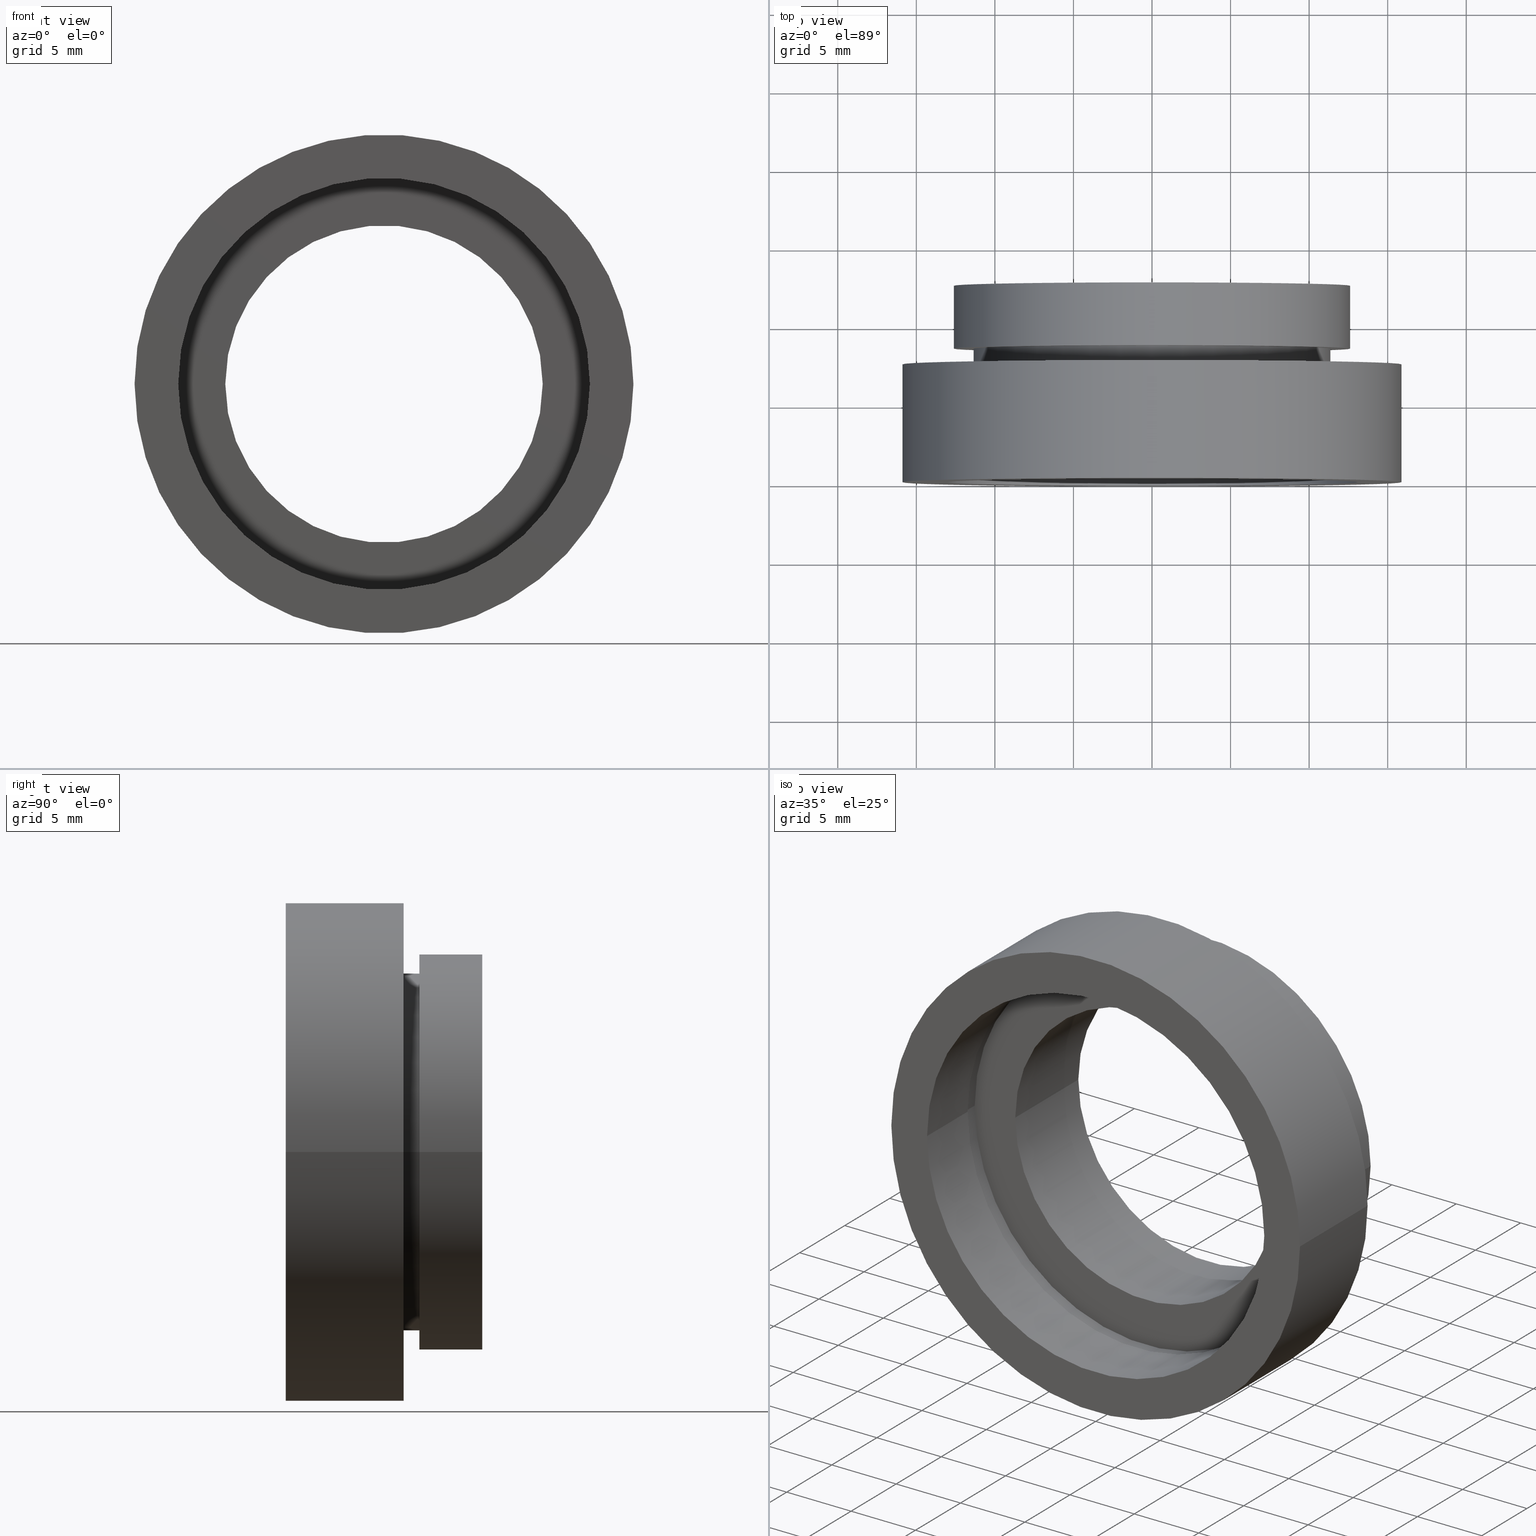
[diagram: canonical four-view strip — front | top / right | iso, engineering-drawing reading convention]
A machine part, canonical four-view strip (front | top / right | iso — engineering-drawing reading convention). The complete STEP part file that produces these views, byte-faithful:
ISO-10303-21;
HEADER;
FILE_DESCRIPTION (( 'STEP AP214' ),
    '1' );
FILE_NAME ('504124.STEP',
    '2019-10-09T01:24:42',
    ( '' ),
    ( '' ),
    'SwSTEP 2.0',
    'SolidWorks 2016',
    '' );
FILE_SCHEMA (( 'AUTOMOTIVE_DESIGN' ));
ENDSEC;

DATA;
#1 = PRODUCT_RELATED_PRODUCT_CATEGORY ( 'part', '', ( #517 ) ) ;
#2 = EDGE_LOOP ( 'NONE', ( #236, #10 ) ) ;
#3 = AXIS2_PLACEMENT_3D ( 'NONE', #292, #338, #446 ) ;
#4 = ORIENTED_EDGE ( 'NONE', *, *, #331, .T. ) ;
#5 = CARTESIAN_POINT ( 'NONE',  ( 0.0000000000000000000, 16.88601823708207700, 0.0000000000000000000 ) ) ;
#6 = DIRECTION ( 'NONE',  ( -1.000000000000000000, -8.587739980083203700E-017, 0.0000000000000000000 ) ) ;
#7 = CARTESIAN_POINT ( 'NONE',  ( 1.149455719078122700E-015, 7.499999999999998200, 0.0000000000000000000 ) ) ;
#8 = CARTESIAN_POINT ( 'NONE',  ( 5.371323195044474300E-016, 12.49999999999999600, 0.0000000000000000000 ) ) ;
#9 = FACE_OUTER_BOUND ( 'NONE', #221, .T. ) ;
#10 = ORIENTED_EDGE ( 'NONE', *, *, #563, .F. ) ;
#11 = DIRECTION ( 'NONE',  ( -1.224646799147351000E-016, 1.000000000000000000, -0.0000000000000000000 ) ) ;
#12 = AXIS2_PLACEMENT_3D ( 'NONE', #5, #199, #487 ) ;
#13 =( NAMED_UNIT ( * ) SI_UNIT ( $, .STERADIAN. ) SOLID_ANGLE_UNIT ( ) );
#14 = SURFACE_STYLE_FILL_AREA ( #486 ) ;
#15 = VERTEX_POINT ( 'NONE', #282 ) ;
#16 = ORIENTED_EDGE ( 'NONE', *, *, #317, .F. ) ;
#17 =( NAMED_UNIT ( * ) SI_UNIT ( $, .STERADIAN. ) SOLID_ANGLE_UNIT ( ) );
#18 =( GEOMETRIC_REPRESENTATION_CONTEXT ( 3 ) GLOBAL_UNCERTAINTY_ASSIGNED_CONTEXT ( ( #178 ) ) GLOBAL_UNIT_ASSIGNED_CONTEXT ( ( #140, #190, #193 ) ) REPRESENTATION_CONTEXT ( 'NONE', 'WORKASPACE' ) );
#19 = VERTEX_POINT ( 'NONE', #332 ) ;
#20 = AXIS2_PLACEMENT_3D ( 'NONE', #168, #223, #171 ) ;
#21 = FILL_AREA_STYLE_COLOUR ( '', #422 ) ;
#22 = EDGE_CURVE ( 'NONE', #174, #325, #309, .T. ) ;
#23 = DIRECTION ( 'NONE',  ( -1.224646799147351000E-016, 1.000000000000000000, -0.0000000000000000000 ) ) ;
#24 = DIRECTION ( 'NONE',  ( -1.000000000000000000, -1.528390727732869900E-016, 0.0000000000000000000 ) ) ;
#25 = FACE_BOUND ( 'NONE', #47, .T. ) ;
#26 =( GEOMETRIC_REPRESENTATION_CONTEXT ( 3 ) GLOBAL_UNCERTAINTY_ASSIGNED_CONTEXT ( ( #139 ) ) GLOBAL_UNIT_ASSIGNED_CONTEXT ( ( #582, #252, #399 ) ) REPRESENTATION_CONTEXT ( 'NONE', 'WORKASPACE' ) );
#27 = ORIENTED_EDGE ( 'NONE', *, *, #51, .F. ) ;
#28 = ORIENTED_EDGE ( 'NONE', *, *, #22, .T. ) ;
#29 = PRODUCT_CONTEXT ( 'NONE', #281, 'mechanical' ) ;
#30 = AXIS2_PLACEMENT_3D ( 'NONE', #132, #477, #35 ) ;
#31 = FACE_OUTER_BOUND ( 'NONE', #70, .T. ) ;
#32 = EDGE_CURVE ( 'NONE', #418, #567, #33, .T. ) ;
#33 = CIRCLE ( 'NONE', #30, 12.60999999999999800 ) ;
#34 = ORIENTED_EDGE ( 'NONE', *, *, #87, .F. ) ;
#35 = DIRECTION ( 'NONE',  ( -1.000000000000000000, -1.375672859616818000E-016, 0.0000000000000000000 ) ) ;
#36 = CARTESIAN_POINT ( 'NONE',  ( 1.394385078907593200E-015, 5.499999999999996400, 0.0000000000000000000 ) ) ;
#37 = EDGE_CURVE ( 'NONE', #567, #418, #78, .T. ) ;
#38 = EDGE_CURVE ( 'NONE', #392, #189, #133, .T. ) ;
#39 = ORIENTED_EDGE ( 'NONE', *, *, #483, .F. ) ;
#40 = EDGE_LOOP ( 'NONE', ( #475, #265 ) ) ;
#41 = DIRECTION ( 'NONE',  ( -1.000000000000000000, -1.375672859616817700E-016, 0.0000000000000000000 ) ) ;
#42 = FILL_AREA_STYLE ('',( #397 ) ) ;
#43 = FILL_AREA_STYLE_COLOUR ( '', #423 ) ;
#44 = CARTESIAN_POINT ( 'NONE',  ( 11.35000000000000100, 8.500000000000000000, 1.389974117032245900E-015 ) ) ;
#45 = AXIS2_PLACEMENT_3D ( 'NONE', #420, #513, #165 ) ;
#46 = AXIS2_PLACEMENT_3D ( 'NONE', #501, #106, #545 ) ;
#47 = EDGE_LOOP ( 'NONE', ( #539, #504 ) ) ;
#48 = DIRECTION ( 'NONE',  ( -1.224646799147351000E-016, 1.000000000000000000, -0.0000000000000000000 ) ) ;
#49 = SURFACE_STYLE_USAGE ( .BOTH. , #348 ) ;
#50 = AXIS2_PLACEMENT_3D ( 'NONE', #550, #264, #406 ) ;
#51 = EDGE_CURVE ( 'NONE', #460, #482, #592, .T. ) ;
#52 = DIRECTION ( 'NONE',  ( -1.000000000000000000, -1.717547996016640700E-016, 0.0000000000000000000 ) ) ;
#53 = CIRCLE ( 'NONE', #71, 15.87499999999999600 ) ;
#54 = LINE ( 'NONE', #261, #172 ) ;
#55 = DIRECTION ( 'NONE',  ( -1.224646799147351000E-016, 1.000000000000000000, -0.0000000000000000000 ) ) ;
#56 = ORIENTED_EDGE ( 'NONE', *, *, #38, .T. ) ;
#57 = AXIS2_PLACEMENT_3D ( 'NONE', #201, #495, #390 ) ;
#58 = CARTESIAN_POINT ( 'NONE',  ( 5.371323195044473300E-016, 12.49999999999999600, 0.0000000000000000000 ) ) ;
#59 = MECHANICAL_DESIGN_GEOMETRIC_PRESENTATION_REPRESENTATION (  '', ( #84 ), #518 ) ;
#60 =( NAMED_UNIT ( * ) PLANE_ANGLE_UNIT ( ) SI_UNIT ( $, .RADIAN. ) );
#61 = COLOUR_RGB ( '',1.000000000000000000, 1.000000000000000000, 1.000000000000000000 ) ;
#62 = PRESENTATION_STYLE_ASSIGNMENT (( #393 ) ) ;
#63 = CARTESIAN_POINT ( 'NONE',  ( 11.35000000000000100, 7.500000000000000000, 1.389974117032245900E-015 ) ) ;
#64 = EDGE_CURVE ( 'NONE', #512, #19, #69, .T. ) ;
#65 =( NAMED_UNIT ( * ) PLANE_ANGLE_UNIT ( ) SI_UNIT ( $, .RADIAN. ) );
#66 = DIRECTION ( 'NONE',  ( -1.224646799147351000E-016, 1.000000000000000000, -0.0000000000000000000 ) ) ;
#67 = STYLED_ITEM ( 'NONE', ( #415 ), #339 ) ;
#68 = VECTOR ( 'NONE', #530, 1000.000000000000000 ) ;
#69 = CIRCLE ( 'NONE', #82, 10.10000000000000000 ) ;
#70 = EDGE_LOOP ( 'NONE', ( #361, #297, #316, #103 ) ) ;
#71 = AXIS2_PLACEMENT_3D ( 'NONE', #413, #169, #417 ) ;
#72 = PLANE ( 'NONE',  #408 ) ;
#73 = ORIENTED_EDGE ( 'NONE', *, *, #618, .T. ) ;
#74 = FILL_AREA_STYLE ('',( #21 ) ) ;
#75 = SURFACE_STYLE_USAGE ( .BOTH. , #565 ) ;
#76 = PRESENTATION_STYLE_ASSIGNMENT (( #212 ) ) ;
#77 = APPLICATION_PROTOCOL_DEFINITION ( 'draft international standard', 'automotive_design', 1998, #281 ) ;
#78 = CIRCLE ( 'NONE', #429, 12.60999999999999800 ) ;
#79 = CARTESIAN_POINT ( 'NONE',  ( 1.394385078907593200E-015, 5.499999999999996400, 0.0000000000000000000 ) ) ;
#80 = ORIENTED_EDGE ( 'NONE', *, *, #137, .T. ) ;
#81 = CARTESIAN_POINT ( 'NONE',  ( -13.10000000000000000, 16.88601823708207700, 0.0000000000000000000 ) ) ;
#82 = AXIS2_PLACEMENT_3D ( 'NONE', #36, #288, #384 ) ;
#83 = ADVANCED_FACE ( 'NONE', ( #571, #474 ), #85, .F. ) ;
#84 = STYLED_ITEM ( 'NONE', ( #76 ), #442 ) ;
#85 = PLANE ( 'NONE',  #206 ) ;
#86 = PRESENTATION_STYLE_ASSIGNMENT (( #557 ) ) ;
#87 = EDGE_CURVE ( 'NONE', #228, #431, #600, .T. ) ;
#88 = EDGE_LOOP ( 'NONE', ( #620, #280 ) ) ;
#89 = ORIENTED_EDGE ( 'NONE', *, *, #32, .T. ) ;
#90 = CARTESIAN_POINT ( 'NONE',  ( -10.10000000000000000, 16.88601823708207700, 0.0000000000000000000 ) ) ;
#91 = FACE_OUTER_BOUND ( 'NONE', #144, .T. ) ;
#92 = SURFACE_STYLE_FILL_AREA ( #497 ) ;
#93 = STYLED_ITEM ( 'NONE', ( #123 ), #401 ) ;
#94 = DIRECTION ( 'NONE',  ( -1.224646799147351000E-016, 1.000000000000000000, -0.0000000000000000000 ) ) ;
#95 = LINE ( 'NONE', #90, #101 ) ;
#96 = CARTESIAN_POINT ( 'NONE',  ( -10.10000000000000000, 12.49999999999999500, 0.0000000000000000000 ) ) ;
#97 = EDGE_CURVE ( 'NONE', #189, #124, #233, .T. ) ;
#98 = DIRECTION ( 'NONE',  ( -1.000000000000000000, -1.224646799147351000E-016, 0.0000000000000000000 ) ) ;
#99 = DIRECTION ( 'NONE',  ( 1.000000000000000000, 1.224646799147351000E-016, 0.0000000000000000000 ) ) ;
#100 = PLANE ( 'NONE',  #267 ) ;
#101 = VECTOR ( 'NONE', #250, 1000.000000000000000 ) ;
#102 = PRESENTATION_LAYER_ASSIGNMENT (  '', '', ( #67 ) ) ;
#103 = ORIENTED_EDGE ( 'NONE', *, *, #152, .F. ) ;
#104 = CARTESIAN_POINT ( 'NONE',  ( 12.60999999999999900, 16.88601823708207700, 1.544279613724812300E-015 ) ) ;
#105 = EDGE_LOOP ( 'NONE', ( #215, #323, #381, #355 ) ) ;
#106 = DIRECTION ( 'NONE',  ( -1.224646799147351000E-016, 1.000000000000000000, -0.0000000000000000000 ) ) ;
#107 = AXIS2_PLACEMENT_3D ( 'NONE', #365, #466, #375 ) ;
#108 = CARTESIAN_POINT ( 'NONE',  ( 15.87500000000000000, -1.525320158307194900E-015, 1.944126793646423200E-015 ) ) ;
#109 = FACE_OUTER_BOUND ( 'NONE', #498, .T. ) ;
#110 =( LENGTH_UNIT ( ) NAMED_UNIT ( * ) SI_UNIT ( .MILLI., .METRE. ) );
#111 = EDGE_LOOP ( 'NONE', ( #549, #574 ) ) ;
#112 = VERTEX_POINT ( 'NONE', #343 ) ;
#113 = DIRECTION ( 'NONE',  ( -1.000000000000000000, -2.185478394931410600E-016, 0.0000000000000000000 ) ) ;
#114 = DIRECTION ( 'NONE',  ( -1.224646799147351000E-016, 1.000000000000000000, -0.0000000000000000000 ) ) ;
#115 = PRESENTATION_LAYER_ASSIGNMENT (  '', '', ( #481 ) ) ;
#116 = CARTESIAN_POINT ( 'NONE',  ( 15.87500000000000000, -1.944126793646428200E-016, 0.0000000000000000000 ) ) ;
#117 = SURFACE_STYLE_FILL_AREA ( #74 ) ;
#118 = FACE_OUTER_BOUND ( 'NONE', #593, .T. ) ;
#119 = PRESENTATION_LAYER_ASSIGNMENT (  '', '', ( #372 ) ) ;
#120 = CARTESIAN_POINT ( 'NONE',  ( -12.60999999999999600, 8.499999999999996400, 0.0000000000000000000 ) ) ;
#121 = ORIENTED_EDGE ( 'NONE', *, *, #175, .T. ) ;
#122 = CLOSED_SHELL ( 'NONE', ( #617, #187, #484, #577, #184, #333, #573, #247, #135, #386, #521, #442, #83, #339, #191, #523, #388, #238 ) ) ;
#123 = PRESENTATION_STYLE_ASSIGNMENT (( #49 ) ) ;
#124 = VERTEX_POINT ( 'NONE', #44 ) ;
#125 = ORIENTED_EDGE ( 'NONE', *, *, #37, .T. ) ;
#126 = AXIS2_PLACEMENT_3D ( 'NONE', #345, #538, #541 ) ;
#127 = UNCERTAINTY_MEASURE_WITH_UNIT (LENGTH_MEASURE( 1.000000000000000100E-005 ), #269, 'distance_accuracy_value', 'NONE');
#128 = DIRECTION ( 'NONE',  ( -1.000000000000000000, -1.309225264888156400E-016, 0.0000000000000000000 ) ) ;
#129 = CARTESIAN_POINT ( 'NONE',  ( 1.026991039163387700E-015, 8.499999999999998200, 0.0000000000000000000 ) ) ;
#130 = CYLINDRICAL_SURFACE ( 'NONE', #173, 11.35000000000000000 ) ;
#131 = VECTOR ( 'NONE', #259, 1000.000000000000000 ) ;
#132 = CARTESIAN_POINT ( 'NONE',  ( 1.026991039163387700E-015, 8.499999999999998200, 0.0000000000000000000 ) ) ;
#133 = LINE ( 'NONE', #185, #352 ) ;
#134 = EDGE_LOOP ( 'NONE', ( #307, #548 ) ) ;
#135 = ADVANCED_FACE ( 'NONE', ( #342, #489 ), #588, .F. ) ;
#136 = CARTESIAN_POINT ( 'NONE',  ( 10.10000000000000000, 12.49999999999999800, 0.0000000000000000000 ) ) ;
#137 = EDGE_CURVE ( 'NONE', #156, #15, #619, .T. ) ;
#138 = DIRECTION ( 'NONE',  ( 1.000000000000000000, 1.224646799147351000E-016, 0.0000000000000000000 ) ) ;
#139 = UNCERTAINTY_MEASURE_WITH_UNIT (LENGTH_MEASURE( 1.000000000000000100E-005 ), #582, 'distance_accuracy_value', 'NONE');
#140 =( LENGTH_UNIT ( ) NAMED_UNIT ( * ) SI_UNIT ( .MILLI., .METRE. ) );
#141 = SURFACE_STYLE_FILL_AREA ( #207 ) ;
#142 = ORIENTED_EDGE ( 'NONE', *, *, #317, .T. ) ;
#143 = CARTESIAN_POINT ( 'NONE',  ( -13.24999999999999800, 16.88601823708207700, 0.0000000000000000000 ) ) ;
#144 = EDGE_LOOP ( 'NONE', ( #213, #344, #56, #400 ) ) ;
#145 = DIRECTION ( 'NONE',  ( -1.000000000000000000, 0.0000000000000000000, 0.0000000000000000000 ) ) ;
#146 = PRODUCT_DEFINITION_SHAPE ( 'NONE', 'NONE',  #277 ) ;
#147 = DIRECTION ( 'NONE',  ( -1.224646799147351000E-016, 1.000000000000000000, -0.0000000000000000000 ) ) ;
#148 =( LENGTH_UNIT ( ) NAMED_UNIT ( * ) SI_UNIT ( .MILLI., .METRE. ) );
#149 = DIRECTION ( 'NONE',  ( -1.224646799147351000E-016, 1.000000000000000000, -0.0000000000000000000 ) ) ;
#150 = DIRECTION ( 'NONE',  ( -1.000000000000000000, -1.092739197465705300E-016, 0.0000000000000000000 ) ) ;
#151 = CARTESIAN_POINT ( 'NONE',  ( 13.10000000000000000, 16.88601823708207700, 1.604287306883032600E-015 ) ) ;
#152 = EDGE_CURVE ( 'NONE', #512, #183, #95, .T. ) ;
#153 = COLOUR_RGB ( '',1.000000000000000000, 1.000000000000000000, 1.000000000000000000 ) ;
#154 =( NAMED_UNIT ( * ) SI_UNIT ( $, .STERADIAN. ) SOLID_ANGLE_UNIT ( ) );
#155 = FACE_OUTER_BOUND ( 'NONE', #105, .T. ) ;
#156 = VERTEX_POINT ( 'NONE', #291 ) ;
#157 = DIRECTION ( 'NONE',  ( -1.000000000000000000, -1.092739197465705300E-016, 0.0000000000000000000 ) ) ;
#158 =( NAMED_UNIT ( * ) PLANE_ANGLE_UNIT ( ) SI_UNIT ( $, .RADIAN. ) );
#159 = ADVANCED_BREP_SHAPE_REPRESENTATION ( '504124', ( #401, #107 ), #287 ) ;
#160 = CIRCLE ( 'NONE', #546, 12.60999999999999900 ) ;
#161 = VERTEX_POINT ( 'NONE', #578 ) ;
#162 =( NAMED_UNIT ( * ) SI_UNIT ( $, .STERADIAN. ) SOLID_ANGLE_UNIT ( ) );
#163 = AXIS2_PLACEMENT_3D ( 'NONE', #508, #507, #113 ) ;
#164 = PRESENTATION_LAYER_ASSIGNMENT (  '', '', ( #435 ) ) ;
#165 = DIRECTION ( 'NONE',  ( -1.000000000000000000, -1.224646799147351000E-016, 0.0000000000000000000 ) ) ;
#166 = ORIENTED_EDGE ( 'NONE', *, *, #511, .T. ) ;
#167 = ORIENTED_EDGE ( 'NONE', *, *, #502, .F. ) ;
#168 = CARTESIAN_POINT ( 'NONE',  ( 0.0000000000000000000, 16.88601823708207700, 0.0000000000000000000 ) ) ;
#169 = DIRECTION ( 'NONE',  ( -1.224646799147351000E-016, 1.000000000000000000, -0.0000000000000000000 ) ) ;
#170 =( GEOMETRIC_REPRESENTATION_CONTEXT ( 3 ) GLOBAL_UNCERTAINTY_ASSIGNED_CONTEXT ( ( #371 ) ) GLOBAL_UNIT_ASSIGNED_CONTEXT ( ( #587, #535, #491 ) ) REPRESENTATION_CONTEXT ( 'NONE', 'WORKASPACE' ) );
#171 = DIRECTION ( 'NONE',  ( -1.000000000000000000, 0.0000000000000000000, 0.0000000000000000000 ) ) ;
#172 = VECTOR ( 'NONE', #404, 1000.000000000000000 ) ;
#173 = AXIS2_PLACEMENT_3D ( 'NONE', #272, #509, #610 ) ;
#174 = VERTEX_POINT ( 'NONE', #531 ) ;
#175 = EDGE_CURVE ( 'NONE', #499, #209, #306, .T. ) ;
#176 = ORIENTED_EDGE ( 'NONE', *, *, #596, .T. ) ;
#177 = APPLICATION_PROTOCOL_DEFINITION ( 'draft international standard', 'automotive_design', 1998, #179 ) ;
#178 = UNCERTAINTY_MEASURE_WITH_UNIT (LENGTH_MEASURE( 1.000000000000000100E-005 ), #140, 'distance_accuracy_value', 'NONE');
#179 = APPLICATION_CONTEXT ( 'automotive_design' ) ;
#180 = DIRECTION ( 'NONE',  ( -1.224646799147351000E-016, 1.000000000000000000, -0.0000000000000000000 ) ) ;
#181 = LINE ( 'NONE', #266, #359 ) ;
#182 = SURFACE_STYLE_FILL_AREA ( #42 ) ;
#183 = VERTEX_POINT ( 'NONE', #96 ) ;
#184 = ADVANCED_FACE ( 'NONE', ( #208 ), #447, .F. ) ;
#185 = CARTESIAN_POINT ( 'NONE',  ( -11.35000000000000000, 16.88601823708207700, 0.0000000000000000000 ) ) ;
#186 = VECTOR ( 'NONE', #55, 1000.000000000000000 ) ;
#187 = ADVANCED_FACE ( 'NONE', ( #155 ), #416, .T. ) ;
#188 = EDGE_LOOP ( 'NONE', ( #601, #224, #28, #73 ) ) ;
#189 = VERTEX_POINT ( 'NONE', #496 ) ;
#190 =( NAMED_UNIT ( * ) PLANE_ANGLE_UNIT ( ) SI_UNIT ( $, .RADIAN. ) );
#191 = ADVANCED_FACE ( 'NONE', ( #366, #321 ), #195, .F. ) ;
#192 = DIRECTION ( 'NONE',  ( -1.224646799147351000E-016, 1.000000000000000000, -0.0000000000000000000 ) ) ;
#193 =( NAMED_UNIT ( * ) SI_UNIT ( $, .STERADIAN. ) SOLID_ANGLE_UNIT ( ) );
#194 =( GEOMETRIC_REPRESENTATION_CONTEXT ( 3 ) GLOBAL_UNCERTAINTY_ASSIGNED_CONTEXT ( ( #127 ) ) GLOBAL_UNIT_ASSIGNED_CONTEXT ( ( #269, #603, #17 ) ) REPRESENTATION_CONTEXT ( 'NONE', 'WORKASPACE' ) );
#195 = PLANE ( 'NONE',  #217 ) ;
#196 = AXIS2_PLACEMENT_3D ( 'NONE', #324, #469, #378 ) ;
#197 = FACE_OUTER_BOUND ( 'NONE', #234, .T. ) ;
#198 = VECTOR ( 'NONE', #337, 1000.000000000000000 ) ;
#199 = DIRECTION ( 'NONE',  ( -1.224646799147351000E-016, 1.000000000000000000, -0.0000000000000000000 ) ) ;
#200 = EDGE_LOOP ( 'NONE', ( #464, #516 ) ) ;
#201 = CARTESIAN_POINT ( 'NONE',  ( 2.067940818438636500E-015, -3.469446951953614200E-015, 0.0000000000000000000 ) ) ;
#202 = DIRECTION ( 'NONE',  ( 1.224646799147351000E-016, -1.000000000000000000, 0.0000000000000000000 ) ) ;
#203 = DIRECTION ( 'NONE',  ( -1.000000000000000000, 0.0000000000000000000, 0.0000000000000000000 ) ) ;
#204 = CARTESIAN_POINT ( 'NONE',  ( 13.25000000000000000, 4.499999999999997300, 1.622657008870242700E-015 ) ) ;
#205 = CARTESIAN_POINT ( 'NONE',  ( 2.067940818438636100E-015, 0.0000000000000000000, 0.0000000000000000000 ) ) ;
#206 = AXIS2_PLACEMENT_3D ( 'NONE', #136, #235, #138 ) ;
#207 = FILL_AREA_STYLE ('',( #43 ) ) ;
#208 = FACE_OUTER_BOUND ( 'NONE', #621, .T. ) ;
#209 = VERTEX_POINT ( 'NONE', #529 ) ;
#210 = EDGE_LOOP ( 'NONE', ( #80, #608 ) ) ;
#211 = DIRECTION ( 'NONE',  ( -1.000000000000000000, -1.375672859616817700E-016, 0.0000000000000000000 ) ) ;
#212 = SURFACE_STYLE_USAGE ( .BOTH. , #597 ) ;
#213 = ORIENTED_EDGE ( 'NONE', *, *, #379, .F. ) ;
#214 = DIRECTION ( 'NONE',  ( -1.000000000000000000, -1.324216393875425300E-016, 0.0000000000000000000 ) ) ;
#215 = ORIENTED_EDGE ( 'NONE', *, *, #599, .T. ) ;
#216 = CARTESIAN_POINT ( 'NONE',  ( 5.371323195044473300E-016, 12.49999999999999600, 0.0000000000000000000 ) ) ;
#217 = AXIS2_PLACEMENT_3D ( 'NONE', #443, #534, #293 ) ;
#218 = CARTESIAN_POINT ( 'NONE',  ( 1.394385078907593200E-015, 5.499999999999996400, 0.0000000000000000000 ) ) ;
#219 = PRESENTATION_LAYER_ASSIGNMENT (  '', '', ( #84 ) ) ;
#220 = DIRECTION ( 'NONE',  ( -1.000000000000000000, -1.717547996016640700E-016, 0.0000000000000000000 ) ) ;
#221 = EDGE_LOOP ( 'NONE', ( #231, #121, #458, #526 ) ) ;
#222 = ORIENTED_EDGE ( 'NONE', *, *, #87, .T. ) ;
#223 = DIRECTION ( 'NONE',  ( -1.224646799147351000E-016, 1.000000000000000000, -0.0000000000000000000 ) ) ;
#224 = ORIENTED_EDGE ( 'NONE', *, *, #285, .F. ) ;
#225 =( NAMED_UNIT ( * ) PLANE_ANGLE_UNIT ( ) SI_UNIT ( $, .RADIAN. ) );
#226 = CIRCLE ( 'NONE', #395, 13.24999999999999800 ) ;
#227 = AXIS2_PLACEMENT_3D ( 'NONE', #364, #319, #24 ) ;
#228 = VERTEX_POINT ( 'NONE', #244 ) ;
#229 = DIRECTION ( 'NONE',  ( -1.224646799147351000E-016, 1.000000000000000000, -0.0000000000000000000 ) ) ;
#230 = AXIS2_PLACEMENT_3D ( 'NONE', #241, #94, #203 ) ;
#231 = ORIENTED_EDGE ( 'NONE', *, *, #320, .F. ) ;
#232 = DIRECTION ( 'NONE',  ( -1.224646799147351000E-016, 1.000000000000000000, -0.0000000000000000000 ) ) ;
#233 = CIRCLE ( 'NONE', #459, 11.35000000000000000 ) ;
#234 = EDGE_LOOP ( 'NONE', ( #125, #166, #410, #520 ) ) ;
#235 = DIRECTION ( 'NONE',  ( 1.224646799147351000E-016, -1.000000000000000000, 0.0000000000000000000 ) ) ;
#236 = ORIENTED_EDGE ( 'NONE', *, *, #377, .F. ) ;
#237 = MECHANICAL_DESIGN_GEOMETRIC_PRESENTATION_REPRESENTATION (  '', ( #566 ), #26 ) ;
#238 = ADVANCED_FACE ( 'NONE', ( #436 ), #315, .T. ) ;
#239 = MECHANICAL_DESIGN_GEOMETRIC_PRESENTATION_REPRESENTATION (  '', ( #572 ), #527 ) ;
#240 = EDGE_CURVE ( 'NONE', #19, #512, #330, .T. ) ;
#241 = CARTESIAN_POINT ( 'NONE',  ( 0.0000000000000000000, 16.88601823708207700, 0.0000000000000000000 ) ) ;
#242 = CYLINDRICAL_SURFACE ( 'NONE', #585, 12.60999999999999900 ) ;
#243 = CIRCLE ( 'NONE', #362, 10.10000000000000000 ) ;
#244 = CARTESIAN_POINT ( 'NONE',  ( -13.24999999999999600, 4.499999999999993800, 0.0000000000000000000 ) ) ;
#245 = CIRCLE ( 'NONE', #570, 13.10000000000000000 ) ;
#246 = CARTESIAN_POINT ( 'NONE',  ( 12.60999999999999900, 8.500000000000000000, 1.544279613724812300E-015 ) ) ;
#247 = ADVANCED_FACE ( 'NONE', ( #248 ), #457, .F. ) ;
#248 = FACE_OUTER_BOUND ( 'NONE', #188, .T. ) ;
#249 = SURFACE_SIDE_STYLE ('',( #430 ) ) ;
#250 = DIRECTION ( 'NONE',  ( -1.224646799147351000E-016, 1.000000000000000000, -0.0000000000000000000 ) ) ;
#251 = FILL_AREA_STYLE_COLOUR ( '', #581 ) ;
#252 =( NAMED_UNIT ( * ) PLANE_ANGLE_UNIT ( ) SI_UNIT ( $, .RADIAN. ) );
#253 = AXIS2_PLACEMENT_3D ( 'NONE', #623, #149, #299 ) ;
#254 = CARTESIAN_POINT ( 'NONE',  ( 11.35000000000000100, 7.500000000000000000, 0.0000000000000000000 ) ) ;
#255 = FACE_OUTER_BOUND ( 'NONE', #2, .T. ) ;
#256 = PRESENTATION_STYLE_ASSIGNMENT (( #624 ) ) ;
#257 = VERTEX_POINT ( 'NONE', #349 ) ;
#258 = AXIS2_PLACEMENT_3D ( 'NONE', #370, #66, #214 ) ;
#259 = DIRECTION ( 'NONE',  ( -1.224646799147351000E-016, 1.000000000000000000, -0.0000000000000000000 ) ) ;
#260 = DIRECTION ( 'NONE',  ( -1.224646799147351000E-016, 1.000000000000000000, -0.0000000000000000000 ) ) ;
#261 = CARTESIAN_POINT ( 'NONE',  ( 13.24999999999999800, 16.88601823708207700, 1.622657008870242700E-015 ) ) ;
#262 = SHAPE_DEFINITION_REPRESENTATION ( #146, #159 ) ;
#263 = CYLINDRICAL_SURFACE ( 'NONE', #230, 13.24999999999999800 ) ;
#264 = DIRECTION ( 'NONE',  ( -1.224646799147351000E-016, 1.000000000000000000, -0.0000000000000000000 ) ) ;
#265 = ORIENTED_EDGE ( 'NONE', *, *, #403, .T. ) ;
#266 = CARTESIAN_POINT ( 'NONE',  ( -15.87500000000000000, 16.88601823708207300, 0.0000000000000000000 ) ) ;
#267 = AXIS2_PLACEMENT_3D ( 'NONE', #254, #340, #589 ) ;
#268 = UNCERTAINTY_MEASURE_WITH_UNIT (LENGTH_MEASURE( 1.000000000000000100E-005 ), #552, 'distance_accuracy_value', 'NONE');
#269 =( LENGTH_UNIT ( ) NAMED_UNIT ( * ) SI_UNIT ( .MILLI., .METRE. ) );
#270 = CIRCLE ( 'NONE', #438, 13.25000000000000000 ) ;
#271 = ORIENTED_EDGE ( 'NONE', *, *, #599, .F. ) ;
#272 = CARTESIAN_POINT ( 'NONE',  ( 0.0000000000000000000, 16.88601823708207700, 0.0000000000000000000 ) ) ;
#273 = EDGE_LOOP ( 'NONE', ( #271, #479 ) ) ;
#274 = DIRECTION ( 'NONE',  ( -1.000000000000000000, -1.224646799147351000E-016, 0.0000000000000000000 ) ) ;
#275 = EDGE_CURVE ( 'NONE', #567, #156, #284, .T. ) ;
#276 = CYLINDRICAL_SURFACE ( 'NONE', #163, 15.87500000000000000 ) ;
#277 = PRODUCT_DEFINITION ( 'δ֪', '', #353, #373 ) ;
#278 = EDGE_CURVE ( 'NONE', #19, #161, #407, .T. ) ;
#279 = VECTOR ( 'NONE', #11, 1000.000000000000000 ) ;
#280 = ORIENTED_EDGE ( 'NONE', *, *, #522, .F. ) ;
#281 = APPLICATION_CONTEXT ( 'automotive_design' ) ;
#282 = CARTESIAN_POINT ( 'NONE',  ( 12.60999999999999900, 12.49999999999999800, 1.544279613724812300E-015 ) ) ;
#283 = FACE_BOUND ( 'NONE', #134, .T. ) ;
#284 = LINE ( 'NONE', #544, #131 ) ;
#285 = EDGE_CURVE ( 'NONE', #174, #499, #329, .T. ) ;
#286 = ORIENTED_EDGE ( 'NONE', *, *, #421, .T. ) ;
#287 =( GEOMETRIC_REPRESENTATION_CONTEXT ( 3 ) GLOBAL_UNCERTAINTY_ASSIGNED_CONTEXT ( ( #268 ) ) GLOBAL_UNIT_ASSIGNED_CONTEXT ( ( #552, #65, #602 ) ) REPRESENTATION_CONTEXT ( 'NONE', 'WORKASPACE' ) );
#288 = DIRECTION ( 'NONE',  ( -1.224646799147351000E-016, 1.000000000000000000, -0.0000000000000000000 ) ) ;
#289 = EDGE_CURVE ( 'NONE', #209, #325, #445, .T. ) ;
#290 = ORIENTED_EDGE ( 'NONE', *, *, #470, .F. ) ;
#291 = CARTESIAN_POINT ( 'NONE',  ( -12.60999999999999900, 12.49999999999999500, 0.0000000000000000000 ) ) ;
#292 = CARTESIAN_POINT ( 'NONE',  ( 0.0000000000000000000, 16.88601823708207700, 0.0000000000000000000 ) ) ;
#293 = DIRECTION ( 'NONE',  ( -1.000000000000000000, -1.224646799147351000E-016, 0.0000000000000000000 ) ) ;
#294 = MECHANICAL_DESIGN_GEOMETRIC_PRESENTATION_REPRESENTATION (  '', ( #93 ), #18 ) ;
#295 =( NAMED_UNIT ( * ) PLANE_ANGLE_UNIT ( ) SI_UNIT ( $, .RADIAN. ) );
#296 = CARTESIAN_POINT ( 'NONE',  ( 1.394385078907593200E-015, 5.499999999999996400, 0.0000000000000000000 ) ) ;
#297 = ORIENTED_EDGE ( 'NONE', *, *, #278, .T. ) ;
#298 = ORIENTED_EDGE ( 'NONE', *, *, #476, .F. ) ;
#299 = DIRECTION ( 'NONE',  ( -1.000000000000000000, 0.0000000000000000000, 0.0000000000000000000 ) ) ;
#300 = CARTESIAN_POINT ( 'NONE',  ( 10.10000000000000000, 16.88601823708207700, 1.236893267138826600E-015 ) ) ;
#301 = CARTESIAN_POINT ( 'NONE',  ( 0.0000000000000000000, 16.88601823708207700, 0.0000000000000000000 ) ) ;
#302 = DIRECTION ( 'NONE',  ( -1.224646799147351000E-016, 1.000000000000000000, -0.0000000000000000000 ) ) ;
#303 = EDGE_CURVE ( 'NONE', #124, #189, #424, .T. ) ;
#304 = CARTESIAN_POINT ( 'NONE',  ( 5.371323195044474300E-016, 12.49999999999999600, 0.0000000000000000000 ) ) ;
#305 = CYLINDRICAL_SURFACE ( 'NONE', #50, 10.10000000000000000 ) ;
#306 = LINE ( 'NONE', #151, #198 ) ;
#307 = ORIENTED_EDGE ( 'NONE', *, *, #285, .T. ) ;
#308 = CARTESIAN_POINT ( 'NONE',  ( -13.24999999999999800, 5.499999999999994700, 0.0000000000000000000 ) ) ;
#309 = LINE ( 'NONE', #81, #562 ) ;
#310 = CARTESIAN_POINT ( 'NONE',  ( 13.10000000000000100, 1.604287306883029700E-015, 1.604287306883032600E-015 ) ) ;
#311 = SURFACE_STYLE_USAGE ( .BOTH. , #411 ) ;
#312 = UNCERTAINTY_MEASURE_WITH_UNIT (LENGTH_MEASURE( 1.000000000000000100E-005 ), #590, 'distance_accuracy_value', 'NONE');
#313 = CARTESIAN_POINT ( 'NONE',  ( -15.87500000000000000, 7.499999999999996400, 0.0000000000000000000 ) ) ;
#314 = CIRCLE ( 'NONE', #542, 13.25000000000000000 ) ;
#315 = CYLINDRICAL_SURFACE ( 'NONE', #12, 15.87500000000000000 ) ;
#316 = ORIENTED_EDGE ( 'NONE', *, *, #522, .T. ) ;
#317 = EDGE_CURVE ( 'NONE', #431, #257, #314, .T. ) ;
#318 =( GEOMETRIC_REPRESENTATION_CONTEXT ( 3 ) GLOBAL_UNCERTAINTY_ASSIGNED_CONTEXT ( ( #579 ) ) GLOBAL_UNIT_ASSIGNED_CONTEXT ( ( #110, #60, #13 ) ) REPRESENTATION_CONTEXT ( 'NONE', 'WORKASPACE' ) );
#319 = DIRECTION ( 'NONE',  ( -1.224646799147351000E-016, 1.000000000000000000, -0.0000000000000000000 ) ) ;
#320 = EDGE_CURVE ( 'NONE', #499, #174, #245, .T. ) ;
#321 = FACE_BOUND ( 'NONE', #354, .T. ) ;
#322 = DIRECTION ( 'NONE',  ( -1.224646799147351000E-016, 1.000000000000000000, 0.0000000000000000000 ) ) ;
#323 = ORIENTED_EDGE ( 'NONE', *, *, #379, .T. ) ;
#324 = CARTESIAN_POINT ( 'NONE',  ( 1.516849758822328500E-015, 4.499999999999995600, 0.0000000000000000000 ) ) ;
#325 = VERTEX_POINT ( 'NONE', #368 ) ;
#326 = DIRECTION ( 'NONE',  ( -1.000000000000000000, -1.528390727732869900E-016, 0.0000000000000000000 ) ) ;
#327 = CYLINDRICAL_SURFACE ( 'NONE', #3, 12.60999999999999900 ) ;
#328 = AXIS2_PLACEMENT_3D ( 'NONE', #351, #454, #157 ) ;
#329 = CIRCLE ( 'NONE', #419, 13.10000000000000000 ) ;
#330 = CIRCLE ( 'NONE', #614, 10.10000000000000000 ) ;
#331 = EDGE_CURVE ( 'NONE', #228, #506, #503, .T. ) ;
#332 = CARTESIAN_POINT ( 'NONE',  ( 10.10000000000000100, 5.499999999999997300, 1.236893267138826600E-015 ) ) ;
#333 = ADVANCED_FACE ( 'NONE', ( #9 ), #514, .F. ) ;
#334 = CIRCLE ( 'NONE', #553, 10.10000000000000000 ) ;
#335 = AXIS2_PLACEMENT_3D ( 'NONE', #389, #202, #99 ) ;
#336 = ORIENTED_EDGE ( 'NONE', *, *, #97, .T. ) ;
#337 = DIRECTION ( 'NONE',  ( -1.224646799147351000E-016, 1.000000000000000000, -0.0000000000000000000 ) ) ;
#338 = DIRECTION ( 'NONE',  ( -1.224646799147351000E-016, 1.000000000000000000, -0.0000000000000000000 ) ) ;
#339 = ADVANCED_FACE ( 'NONE', ( #118 ), #327, .T. ) ;
#340 = DIRECTION ( 'NONE',  ( 1.224646799147351000E-016, -1.000000000000000000, 0.0000000000000000000 ) ) ;
#341 = COLOUR_RGB ( '',1.000000000000000000, 1.000000000000000000, 1.000000000000000000 ) ;
#342 = FACE_BOUND ( 'NONE', #200, .T. ) ;
#343 = CARTESIAN_POINT ( 'NONE',  ( -15.87499999999999300, -5.413573745600033100E-015, 0.0000000000000000000 ) ) ;
#344 = ORIENTED_EDGE ( 'NONE', *, *, #440, .T. ) ;
#345 = CARTESIAN_POINT ( 'NONE',  ( 0.0000000000000000000, 16.88601823708207700, 0.0000000000000000000 ) ) ;
#346 = DIRECTION ( 'NONE',  ( -1.000000000000000000, -1.528390727732869900E-016, 0.0000000000000000000 ) ) ;
#347 = EDGE_CURVE ( 'NONE', #537, #482, #524, .T. ) ;
#348 = SURFACE_SIDE_STYLE ('',( #14 ) ) ;
#349 = CARTESIAN_POINT ( 'NONE',  ( 13.25000000000000400, 5.499999999999998200, 1.622657008870243100E-015 ) ) ;
#350 = FACE_BOUND ( 'NONE', #273, .T. ) ;
#351 = CARTESIAN_POINT ( 'NONE',  ( 1.149455719078122700E-015, 7.499999999999998200, 0.0000000000000000000 ) ) ;
#352 = VECTOR ( 'NONE', #382, 1000.000000000000000 ) ;
#353 = PRODUCT_DEFINITION_FORMATION_WITH_SPECIFIED_SOURCE ( '�κ�', '', #517, .NOT_KNOWN. ) ;
#354 = EDGE_LOOP ( 'NONE', ( #336, #391 ) ) ;
#355 = ORIENTED_EDGE ( 'NONE', *, *, #38, .F. ) ;
#356 = DIRECTION ( 'NONE',  ( -1.224646799147351000E-016, 1.000000000000000000, -0.0000000000000000000 ) ) ;
#357 = DIRECTION ( 'NONE',  ( -1.224646799147351000E-016, 1.000000000000000000, -0.0000000000000000000 ) ) ;
#358 = FILL_AREA_STYLE_COLOUR ( '', #61 ) ;
#359 = VECTOR ( 'NONE', #357, 1000.000000000000000 ) ;
#360 = EDGE_LOOP ( 'NONE', ( #16, #426 ) ) ;
#361 = ORIENTED_EDGE ( 'NONE', *, *, #240, .F. ) ;
#362 = AXIS2_PLACEMENT_3D ( 'NONE', #58, #260, #52 ) ;
#363 = PLANE ( 'NONE',  #45 ) ;
#364 = CARTESIAN_POINT ( 'NONE',  ( 1.149455719078122700E-015, 7.499999999999998200, 0.0000000000000000000 ) ) ;
#365 = CARTESIAN_POINT ( 'NONE',  ( 0.0000000000000000000, 0.0000000000000000000, 0.0000000000000000000 ) ) ;
#366 = FACE_OUTER_BOUND ( 'NONE', #111, .T. ) ;
#367 = EDGE_LOOP ( 'NONE', ( #612, #528, #595, #290 ) ) ;
#368 = CARTESIAN_POINT ( 'NONE',  ( -13.09999999999999800, 4.499999999999993800, 0.0000000000000000000 ) ) ;
#369 = PRESENTATION_LAYER_ASSIGNMENT (  '', '', ( #566 ) ) ;
#370 = CARTESIAN_POINT ( 'NONE',  ( 1.516849758822328500E-015, 4.499999999999995600, 0.0000000000000000000 ) ) ;
#371 = UNCERTAINTY_MEASURE_WITH_UNIT (LENGTH_MEASURE( 1.000000000000000100E-005 ), #587, 'distance_accuracy_value', 'NONE');
#372 = STYLED_ITEM ( 'NONE', ( #472 ), #484 ) ;
#373 = PRODUCT_DEFINITION_CONTEXT ( 'detailed design', #179, 'design' ) ;
#374 = SURFACE_STYLE_FILL_AREA ( #461 ) ;
#375 = DIRECTION ( 'NONE',  ( 1.000000000000000000, 0.0000000000000000000, 0.0000000000000000000 ) ) ;
#376 = ORIENTED_EDGE ( 'NONE', *, *, #563, .T. ) ;
#377 = EDGE_CURVE ( 'NONE', #112, #460, #561, .T. ) ;
#378 = DIRECTION ( 'NONE',  ( -1.000000000000000000, -1.324216393875425300E-016, 0.0000000000000000000 ) ) ;
#379 = EDGE_CURVE ( 'NONE', #558, #124, #591, .T. ) ;
#380 = VECTOR ( 'NONE', #48, 1000.000000000000000 ) ;
#381 = ORIENTED_EDGE ( 'NONE', *, *, #97, .F. ) ;
#382 = DIRECTION ( 'NONE',  ( -1.224646799147351000E-016, 1.000000000000000000, -0.0000000000000000000 ) ) ;
#383 = ORIENTED_EDGE ( 'NONE', *, *, #64, .F. ) ;
#384 = DIRECTION ( 'NONE',  ( -1.000000000000000000, -8.587739980083203700E-017, 0.0000000000000000000 ) ) ;
#385 = CARTESIAN_POINT ( 'NONE',  ( 2.067940818438636100E-015, 0.0000000000000000000, 0.0000000000000000000 ) ) ;
#386 = ADVANCED_FACE ( 'NONE', ( #109 ), #263, .F. ) ;
#387 = LINE ( 'NONE', #104, #186 ) ;
#388 = ADVANCED_FACE ( 'NONE', ( #350, #405 ), #100, .F. ) ;
#389 = CARTESIAN_POINT ( 'NONE',  ( 13.10000000000000100, 4.499999999999997300, 0.0000000000000000000 ) ) ;
#390 = DIRECTION ( 'NONE',  ( -1.000000000000000000, -1.224646799147350700E-016, 0.0000000000000000000 ) ) ;
#391 = ORIENTED_EDGE ( 'NONE', *, *, #303, .T. ) ;
#392 = VERTEX_POINT ( 'NONE', #533 ) ;
#393 = SURFACE_STYLE_USAGE ( .BOTH. , #448 ) ;
#394 = FILL_AREA_STYLE ('',( #576 ) ) ;
#395 = AXIS2_PLACEMENT_3D ( 'NONE', #598, #505, #551 ) ;
#396 = MECHANICAL_DESIGN_GEOMETRIC_PRESENTATION_REPRESENTATION (  '', ( #67 ), #170 ) ;
#397 = FILL_AREA_STYLE_COLOUR ( '', #606 ) ;
#398 = ORIENTED_EDGE ( 'NONE', *, *, #331, .F. ) ;
#399 =( NAMED_UNIT ( * ) SI_UNIT ( $, .STERADIAN. ) SOLID_ANGLE_UNIT ( ) );
#400 = ORIENTED_EDGE ( 'NONE', *, *, #303, .F. ) ;
#401 = MANIFOLD_SOLID_BREP ( '��ת1', #122 ) ;
#402 = CARTESIAN_POINT ( 'NONE',  ( 1.516849758822328500E-015, 4.499999999999995600, 0.0000000000000000000 ) ) ;
#403 = EDGE_CURVE ( 'NONE', #482, #537, #611, .T. ) ;
#404 = DIRECTION ( 'NONE',  ( -1.224646799147351000E-016, 1.000000000000000000, -0.0000000000000000000 ) ) ;
#405 = FACE_OUTER_BOUND ( 'NONE', #40, .T. ) ;
#406 = DIRECTION ( 'NONE',  ( -1.000000000000000000, 0.0000000000000000000, 0.0000000000000000000 ) ) ;
#407 = LINE ( 'NONE', #300, #279 ) ;
#408 = AXIS2_PLACEMENT_3D ( 'NONE', #116, #322, #274 ) ;
#409 = EDGE_LOOP ( 'NONE', ( #437, #383, #564, #286 ) ) ;
#410 = ORIENTED_EDGE ( 'NONE', *, *, #137, .F. ) ;
#411 = SURFACE_SIDE_STYLE ('',( #92 ) ) ;
#412 = DIRECTION ( 'NONE',  ( -1.224646799147351000E-016, 1.000000000000000000, -0.0000000000000000000 ) ) ;
#413 = CARTESIAN_POINT ( 'NONE',  ( 2.067940818438636500E-015, -3.469446951953614200E-015, 0.0000000000000000000 ) ) ;
#414 = CYLINDRICAL_SURFACE ( 'NONE', #20, 10.10000000000000000 ) ;
#415 = PRESENTATION_STYLE_ASSIGNMENT (( #525 ) ) ;
#416 = CYLINDRICAL_SURFACE ( 'NONE', #253, 11.35000000000000000 ) ;
#417 = DIRECTION ( 'NONE',  ( -1.000000000000000000, -1.224646799147350700E-016, 0.0000000000000000000 ) ) ;
#418 = VERTEX_POINT ( 'NONE', #246 ) ;
#419 = AXIS2_PLACEMENT_3D ( 'NONE', #205, #302, #427 ) ;
#420 = CARTESIAN_POINT ( 'NONE',  ( 10.10000000000000100, 5.499999999999998200, 0.0000000000000000000 ) ) ;
#421 = EDGE_CURVE ( 'NONE', #183, #161, #243, .T. ) ;
#422 = COLOUR_RGB ( '',1.000000000000000000, 1.000000000000000000, 1.000000000000000000 ) ;
#423 = COLOUR_RGB ( '',1.000000000000000000, 1.000000000000000000, 1.000000000000000000 ) ;
#424 = CIRCLE ( 'NONE', #478, 11.35000000000000000 ) ;
#425 = EDGE_LOOP ( 'NONE', ( #4, #453 ) ) ;
#426 = ORIENTED_EDGE ( 'NONE', *, *, #596, .F. ) ;
#427 = DIRECTION ( 'NONE',  ( -1.000000000000000000, -1.224646799147351000E-016, 0.0000000000000000000 ) ) ;
#428 = MECHANICAL_DESIGN_GEOMETRIC_PRESENTATION_REPRESENTATION (  '', ( #372 ), #318 ) ;
#429 = AXIS2_PLACEMENT_3D ( 'NONE', #129, #485, #432 ) ;
#430 = SURFACE_STYLE_FILL_AREA ( #394 ) ;
#431 = VERTEX_POINT ( 'NONE', #308 ) ;
#432 = DIRECTION ( 'NONE',  ( -1.000000000000000000, -1.375672859616818000E-016, 0.0000000000000000000 ) ) ;
#433 = CARTESIAN_POINT ( 'NONE',  ( 15.87500000000000000, 16.88601823708208000, 1.944126793646423200E-015 ) ) ;
#434 = CIRCLE ( 'NONE', #258, 13.10000000000000000 ) ;
#435 = STYLED_ITEM ( 'NONE', ( #256 ), #333 ) ;
#436 = FACE_OUTER_BOUND ( 'NONE', #480, .T. ) ;
#437 = ORIENTED_EDGE ( 'NONE', *, *, #278, .F. ) ;
#438 = AXIS2_PLACEMENT_3D ( 'NONE', #218, #23, #560 ) ;
#439 = CARTESIAN_POINT ( 'NONE',  ( 0.0000000000000000000, 16.88601823708207700, 0.0000000000000000000 ) ) ;
#440 = EDGE_CURVE ( 'NONE', #558, #392, #452, .T. ) ;
#441 = DIRECTION ( 'NONE',  ( -1.000000000000000000, -1.309225264888156400E-016, 0.0000000000000000000 ) ) ;
#442 = ADVANCED_FACE ( 'NONE', ( #554 ), #305, .F. ) ;
#443 = CARTESIAN_POINT ( 'NONE',  ( 12.60999999999999900, 8.500000000000000000, 0.0000000000000000000 ) ) ;
#444 = FILL_AREA_STYLE ('',( #540 ) ) ;
#445 = CIRCLE ( 'NONE', #196, 13.10000000000000000 ) ;
#446 = DIRECTION ( 'NONE',  ( -1.000000000000000000, 0.0000000000000000000, 0.0000000000000000000 ) ) ;
#447 = CYLINDRICAL_SURFACE ( 'NONE', #450, 13.24999999999999800 ) ;
#448 = SURFACE_SIDE_STYLE ('',( #182 ) ) ;
#449 = SURFACE_SIDE_STYLE ('',( #510 ) ) ;
#450 = AXIS2_PLACEMENT_3D ( 'NONE', #439, #492, #494 ) ;
#451 = PRESENTATION_LAYER_ASSIGNMENT (  '', '', ( #572 ) ) ;
#452 = CIRCLE ( 'NONE', #46, 11.35000000000000000 ) ;
#453 = ORIENTED_EDGE ( 'NONE', *, *, #483, .T. ) ;
#454 = DIRECTION ( 'NONE',  ( -1.224646799147351000E-016, 1.000000000000000000, -0.0000000000000000000 ) ) ;
#455 = UNCERTAINTY_MEASURE_WITH_UNIT (LENGTH_MEASURE( 1.000000000000000100E-005 ), #148, 'distance_accuracy_value', 'NONE');
#456 = DIRECTION ( 'NONE',  ( -1.000000000000000000, 0.0000000000000000000, 0.0000000000000000000 ) ) ;
#457 = CYLINDRICAL_SURFACE ( 'NONE', #126, 13.10000000000000000 ) ;
#458 = ORIENTED_EDGE ( 'NONE', *, *, #289, .T. ) ;
#459 = AXIS2_PLACEMENT_3D ( 'NONE', #575, #490, #346 ) ;
#460 = VERTEX_POINT ( 'NONE', #108 ) ;
#461 = FILL_AREA_STYLE ('',( #607 ) ) ;
#462 = FACE_OUTER_BOUND ( 'NONE', #360, .T. ) ;
#463 = ORIENTED_EDGE ( 'NONE', *, *, #275, .T. ) ;
#464 = ORIENTED_EDGE ( 'NONE', *, *, #618, .F. ) ;
#465 = AXIS2_PLACEMENT_3D ( 'NONE', #8, #192, #41 ) ;
#466 = DIRECTION ( 'NONE',  ( 0.0000000000000000000, 0.0000000000000000000, 1.000000000000000000 ) ) ;
#467 = DIRECTION ( 'NONE',  ( -1.224646799147351000E-016, 1.000000000000000000, -0.0000000000000000000 ) ) ;
#468 =( LENGTH_UNIT ( ) NAMED_UNIT ( * ) SI_UNIT ( .MILLI., .METRE. ) );
#469 = DIRECTION ( 'NONE',  ( -1.224646799147351000E-016, 1.000000000000000000, -0.0000000000000000000 ) ) ;
#470 = EDGE_CURVE ( 'NONE', #112, #537, #181, .T. ) ;
#471 =( NAMED_UNIT ( * ) SI_UNIT ( $, .STERADIAN. ) SOLID_ANGLE_UNIT ( ) );
#472 = PRESENTATION_STYLE_ASSIGNMENT (( #311 ) ) ;
#473 = CARTESIAN_POINT ( 'NONE',  ( 0.0000000000000000000, 16.88601823708207700, 0.0000000000000000000 ) ) ;
#474 = FACE_OUTER_BOUND ( 'NONE', #210, .T. ) ;
#475 = ORIENTED_EDGE ( 'NONE', *, *, #347, .T. ) ;
#476 = EDGE_CURVE ( 'NONE', #506, #257, #54, .T. ) ;
#477 = DIRECTION ( 'NONE',  ( -1.224646799147351000E-016, 1.000000000000000000, -0.0000000000000000000 ) ) ;
#478 = AXIS2_PLACEMENT_3D ( 'NONE', #609, #467, #326 ) ;
#479 = ORIENTED_EDGE ( 'NONE', *, *, #440, .F. ) ;
#480 = EDGE_LOOP ( 'NONE', ( #27, #376, #515, #569 ) ) ;
#481 = STYLED_ITEM ( 'NONE', ( #86 ), #577 ) ;
#482 = VERTEX_POINT ( 'NONE', #594 ) ;
#483 = EDGE_CURVE ( 'NONE', #506, #228, #226, .T. ) ;
#484 = ADVANCED_FACE ( 'NONE', ( #197 ), #242, .T. ) ;
#485 = DIRECTION ( 'NONE',  ( -1.224646799147351000E-016, 1.000000000000000000, -0.0000000000000000000 ) ) ;
#486 = FILL_AREA_STYLE ('',( #251 ) ) ;
#487 = DIRECTION ( 'NONE',  ( -1.000000000000000000, -2.185478394931410600E-016, 0.0000000000000000000 ) ) ;
#488 = DIRECTION ( 'NONE',  ( -1.224646799147351000E-016, 1.000000000000000000, -0.0000000000000000000 ) ) ;
#489 = FACE_OUTER_BOUND ( 'NONE', #425, .T. ) ;
#490 = DIRECTION ( 'NONE',  ( -1.224646799147351000E-016, 1.000000000000000000, -0.0000000000000000000 ) ) ;
#491 =( NAMED_UNIT ( * ) SI_UNIT ( $, .STERADIAN. ) SOLID_ANGLE_UNIT ( ) );
#492 = DIRECTION ( 'NONE',  ( -1.224646799147351000E-016, 1.000000000000000000, -0.0000000000000000000 ) ) ;
#493 = AXIS2_PLACEMENT_3D ( 'NONE', #402, #583, #441 ) ;
#494 = DIRECTION ( 'NONE',  ( -1.000000000000000000, 0.0000000000000000000, 0.0000000000000000000 ) ) ;
#495 = DIRECTION ( 'NONE',  ( -1.224646799147351000E-016, 1.000000000000000000, -0.0000000000000000000 ) ) ;
#496 = CARTESIAN_POINT ( 'NONE',  ( -11.34999999999999800, 8.499999999999996400, 0.0000000000000000000 ) ) ;
#497 = FILL_AREA_STYLE ('',( #358 ) ) ;
#498 = EDGE_LOOP ( 'NONE', ( #298, #398, #222, #142 ) ) ;
#499 = VERTEX_POINT ( 'NONE', #310 ) ;
#500 = AXIS2_PLACEMENT_3D ( 'NONE', #473, #229, #145 ) ;
#501 = CARTESIAN_POINT ( 'NONE',  ( 1.149455719078122700E-015, 7.499999999999998200, 0.0000000000000000000 ) ) ;
#502 = EDGE_CURVE ( 'NONE', #15, #156, #160, .T. ) ;
#503 = CIRCLE ( 'NONE', #493, 13.24999999999999800 ) ;
#504 = ORIENTED_EDGE ( 'NONE', *, *, #240, .T. ) ;
#505 = DIRECTION ( 'NONE',  ( -1.224646799147351000E-016, 1.000000000000000000, -0.0000000000000000000 ) ) ;
#506 = VERTEX_POINT ( 'NONE', #204 ) ;
#507 = DIRECTION ( 'NONE',  ( -1.224646799147351000E-016, 1.000000000000000000, -0.0000000000000000000 ) ) ;
#508 = CARTESIAN_POINT ( 'NONE',  ( 0.0000000000000000000, 16.88601823708207700, 0.0000000000000000000 ) ) ;
#509 = DIRECTION ( 'NONE',  ( -1.224646799147351000E-016, 1.000000000000000000, -0.0000000000000000000 ) ) ;
#510 = SURFACE_STYLE_FILL_AREA ( #444 ) ;
#511 = EDGE_CURVE ( 'NONE', #418, #15, #387, .T. ) ;
#512 = VERTEX_POINT ( 'NONE', #543 ) ;
#513 = DIRECTION ( 'NONE',  ( -1.224646799147351000E-016, 1.000000000000000000, 0.0000000000000000000 ) ) ;
#514 = CYLINDRICAL_SURFACE ( 'NONE', #500, 13.10000000000000000 ) ;
#515 = ORIENTED_EDGE ( 'NONE', *, *, #470, .T. ) ;
#516 = ORIENTED_EDGE ( 'NONE', *, *, #289, .F. ) ;
#517 = PRODUCT ( '504124', '504124', '', ( #29 ) ) ;
#518 =( GEOMETRIC_REPRESENTATION_CONTEXT ( 3 ) GLOBAL_UNCERTAINTY_ASSIGNED_CONTEXT ( ( #312 ) ) GLOBAL_UNIT_ASSIGNED_CONTEXT ( ( #590, #158, #162 ) ) REPRESENTATION_CONTEXT ( 'NONE', 'WORKASPACE' ) );
#519 = DIRECTION ( 'NONE',  ( -1.224646799147351000E-016, 1.000000000000000000, -0.0000000000000000000 ) ) ;
#520 = ORIENTED_EDGE ( 'NONE', *, *, #275, .F. ) ;
#521 = ADVANCED_FACE ( 'NONE', ( #462, #25 ), #363, .F. ) ;
#522 = EDGE_CURVE ( 'NONE', #161, #183, #334, .T. ) ;
#523 = ADVANCED_FACE ( 'NONE', ( #91 ), #130, .T. ) ;
#524 = CIRCLE ( 'NONE', #622, 15.87500000000000000 ) ;
#525 = SURFACE_STYLE_USAGE ( .BOTH. , #249 ) ;
#526 = ORIENTED_EDGE ( 'NONE', *, *, #22, .F. ) ;
#527 =( GEOMETRIC_REPRESENTATION_CONTEXT ( 3 ) GLOBAL_UNCERTAINTY_ASSIGNED_CONTEXT ( ( #532 ) ) GLOBAL_UNIT_ASSIGNED_CONTEXT ( ( #468, #225, #471 ) ) REPRESENTATION_CONTEXT ( 'NONE', 'WORKASPACE' ) );
#528 = ORIENTED_EDGE ( 'NONE', *, *, #51, .T. ) ;
#529 = CARTESIAN_POINT ( 'NONE',  ( 13.10000000000000100, 4.499999999999997300, 1.604287306883032600E-015 ) ) ;
#530 = DIRECTION ( 'NONE',  ( -1.224646799147351000E-016, 1.000000000000000000, -0.0000000000000000000 ) ) ;
#531 = CARTESIAN_POINT ( 'NONE',  ( -13.09999999999999800, -1.604287306883029700E-015, 0.0000000000000000000 ) ) ;
#532 = UNCERTAINTY_MEASURE_WITH_UNIT (LENGTH_MEASURE( 1.000000000000000100E-005 ), #468, 'distance_accuracy_value', 'NONE');
#533 = CARTESIAN_POINT ( 'NONE',  ( -11.34999999999999800, 7.499999999999996400, 0.0000000000000000000 ) ) ;
#534 = DIRECTION ( 'NONE',  ( -1.224646799147351000E-016, 1.000000000000000000, 0.0000000000000000000 ) ) ;
#535 =( NAMED_UNIT ( * ) PLANE_ANGLE_UNIT ( ) SI_UNIT ( $, .RADIAN. ) );
#536 = COLOUR_RGB ( '',1.000000000000000000, 1.000000000000000000, 1.000000000000000000 ) ;
#537 = VERTEX_POINT ( 'NONE', #313 ) ;
#538 = DIRECTION ( 'NONE',  ( -1.224646799147351000E-016, 1.000000000000000000, -0.0000000000000000000 ) ) ;
#539 = ORIENTED_EDGE ( 'NONE', *, *, #64, .T. ) ;
#540 = FILL_AREA_STYLE_COLOUR ( '', #153 ) ;
#541 = DIRECTION ( 'NONE',  ( -1.000000000000000000, 0.0000000000000000000, 0.0000000000000000000 ) ) ;
#542 = AXIS2_PLACEMENT_3D ( 'NONE', #79, #180, #128 ) ;
#543 = CARTESIAN_POINT ( 'NONE',  ( -10.09999999999999800, 5.499999999999995600, 0.0000000000000000000 ) ) ;
#544 = CARTESIAN_POINT ( 'NONE',  ( -12.60999999999999900, 16.88601823708207700, 0.0000000000000000000 ) ) ;
#545 = DIRECTION ( 'NONE',  ( -1.000000000000000000, -1.528390727732869900E-016, 0.0000000000000000000 ) ) ;
#546 = AXIS2_PLACEMENT_3D ( 'NONE', #304, #356, #211 ) ;
#547 = PRESENTATION_STYLE_ASSIGNMENT (( #75 ) ) ;
#548 = ORIENTED_EDGE ( 'NONE', *, *, #320, .T. ) ;
#549 = ORIENTED_EDGE ( 'NONE', *, *, #37, .F. ) ;
#550 = CARTESIAN_POINT ( 'NONE',  ( 0.0000000000000000000, 16.88601823708207700, 0.0000000000000000000 ) ) ;
#551 = DIRECTION ( 'NONE',  ( -1.000000000000000000, -1.309225264888156400E-016, 0.0000000000000000000 ) ) ;
#552 =( LENGTH_UNIT ( ) NAMED_UNIT ( * ) SI_UNIT ( .MILLI., .METRE. ) );
#553 = AXIS2_PLACEMENT_3D ( 'NONE', #216, #114, #220 ) ;
#554 = FACE_OUTER_BOUND ( 'NONE', #409, .T. ) ;
#555 =( GEOMETRIC_REPRESENTATION_CONTEXT ( 3 ) GLOBAL_UNCERTAINTY_ASSIGNED_CONTEXT ( ( #455 ) ) GLOBAL_UNIT_ASSIGNED_CONTEXT ( ( #148, #295, #154 ) ) REPRESENTATION_CONTEXT ( 'NONE', 'WORKASPACE' ) );
#556 = ORIENTED_EDGE ( 'NONE', *, *, #476, .T. ) ;
#557 = SURFACE_STYLE_USAGE ( .BOTH. , #604 ) ;
#558 = VERTEX_POINT ( 'NONE', #63 ) ;
#559 = FACE_OUTER_BOUND ( 'NONE', #367, .T. ) ;
#560 = DIRECTION ( 'NONE',  ( -1.000000000000000000, -1.309225264888156400E-016, 0.0000000000000000000 ) ) ;
#561 = CIRCLE ( 'NONE', #57, 15.87499999999999600 ) ;
#562 = VECTOR ( 'NONE', #232, 1000.000000000000000 ) ;
#563 = EDGE_CURVE ( 'NONE', #460, #112, #53, .T. ) ;
#564 = ORIENTED_EDGE ( 'NONE', *, *, #152, .T. ) ;
#565 = SURFACE_SIDE_STYLE ('',( #117 ) ) ;
#566 = STYLED_ITEM ( 'NONE', ( #62 ), #247 ) ;
#567 = VERTEX_POINT ( 'NONE', #120 ) ;
#568 = DIRECTION ( 'NONE',  ( -1.224646799147351000E-016, 1.000000000000000000, -0.0000000000000000000 ) ) ;
#569 = ORIENTED_EDGE ( 'NONE', *, *, #403, .F. ) ;
#570 = AXIS2_PLACEMENT_3D ( 'NONE', #385, #568, #98 ) ;
#571 = FACE_BOUND ( 'NONE', #88, .T. ) ;
#572 = STYLED_ITEM ( 'NONE', ( #547 ), #159 ) ;
#573 = ADVANCED_FACE ( 'NONE', ( #255, #283 ), #72, .F. ) ;
#574 = ORIENTED_EDGE ( 'NONE', *, *, #32, .F. ) ;
#575 = CARTESIAN_POINT ( 'NONE',  ( 1.026991039163387700E-015, 8.499999999999998200, 0.0000000000000000000 ) ) ;
#576 = FILL_AREA_STYLE_COLOUR ( '', #341 ) ;
#577 = ADVANCED_FACE ( 'NONE', ( #31 ), #414, .F. ) ;
#578 = CARTESIAN_POINT ( 'NONE',  ( 10.10000000000000000, 12.49999999999999800, 1.236893267138826600E-015 ) ) ;
#579 = UNCERTAINTY_MEASURE_WITH_UNIT (LENGTH_MEASURE( 1.000000000000000100E-005 ), #110, 'distance_accuracy_value', 'NONE');
#580 = CARTESIAN_POINT ( 'NONE',  ( 11.35000000000000000, 16.88601823708207700, 1.389974117032245900E-015 ) ) ;
#581 = COLOUR_RGB ( '',1.000000000000000000, 1.000000000000000000, 1.000000000000000000 ) ;
#582 =( LENGTH_UNIT ( ) NAMED_UNIT ( * ) SI_UNIT ( .MILLI., .METRE. ) );
#583 = DIRECTION ( 'NONE',  ( -1.224646799147351000E-016, 1.000000000000000000, -0.0000000000000000000 ) ) ;
#584 = VECTOR ( 'NONE', #519, 1000.000000000000000 ) ;
#585 = AXIS2_PLACEMENT_3D ( 'NONE', #301, #412, #456 ) ;
#586 = PRESENTATION_LAYER_ASSIGNMENT (  '', '', ( #93 ) ) ;
#587 =( LENGTH_UNIT ( ) NAMED_UNIT ( * ) SI_UNIT ( .MILLI., .METRE. ) );
#588 = PLANE ( 'NONE',  #335 ) ;
#589 = DIRECTION ( 'NONE',  ( 1.000000000000000000, 1.224646799147351000E-016, 0.0000000000000000000 ) ) ;
#590 =( LENGTH_UNIT ( ) NAMED_UNIT ( * ) SI_UNIT ( .MILLI., .METRE. ) );
#591 = LINE ( 'NONE', #580, #68 ) ;
#592 = LINE ( 'NONE', #433, #584 ) ;
#593 = EDGE_LOOP ( 'NONE', ( #613, #89, #463, #167 ) ) ;
#594 = CARTESIAN_POINT ( 'NONE',  ( 15.87500000000000000, 7.500000000000000000, 1.944126793646423200E-015 ) ) ;
#595 = ORIENTED_EDGE ( 'NONE', *, *, #347, .F. ) ;
#596 = EDGE_CURVE ( 'NONE', #257, #431, #270, .T. ) ;
#597 = SURFACE_SIDE_STYLE ('',( #141 ) ) ;
#598 = CARTESIAN_POINT ( 'NONE',  ( 1.516849758822328500E-015, 4.499999999999995600, 0.0000000000000000000 ) ) ;
#599 = EDGE_CURVE ( 'NONE', #392, #558, #615, .T. ) ;
#600 = LINE ( 'NONE', #143, #380 ) ;
#601 = ORIENTED_EDGE ( 'NONE', *, *, #175, .F. ) ;
#602 =( NAMED_UNIT ( * ) SI_UNIT ( $, .STERADIAN. ) SOLID_ANGLE_UNIT ( ) );
#603 =( NAMED_UNIT ( * ) PLANE_ANGLE_UNIT ( ) SI_UNIT ( $, .RADIAN. ) );
#604 = SURFACE_SIDE_STYLE ('',( #374 ) ) ;
#605 = MECHANICAL_DESIGN_GEOMETRIC_PRESENTATION_REPRESENTATION (  '', ( #435 ), #555 ) ;
#606 = COLOUR_RGB ( '',1.000000000000000000, 1.000000000000000000, 1.000000000000000000 ) ;
#607 = FILL_AREA_STYLE_COLOUR ( '', #536 ) ;
#608 = ORIENTED_EDGE ( 'NONE', *, *, #502, .T. ) ;
#609 = CARTESIAN_POINT ( 'NONE',  ( 1.026991039163387700E-015, 8.499999999999998200, 0.0000000000000000000 ) ) ;
#610 = DIRECTION ( 'NONE',  ( -1.000000000000000000, 0.0000000000000000000, 0.0000000000000000000 ) ) ;
#611 = CIRCLE ( 'NONE', #328, 15.87500000000000000 ) ;
#612 = ORIENTED_EDGE ( 'NONE', *, *, #377, .T. ) ;
#613 = ORIENTED_EDGE ( 'NONE', *, *, #511, .F. ) ;
#614 = AXIS2_PLACEMENT_3D ( 'NONE', #296, #147, #6 ) ;
#615 = CIRCLE ( 'NONE', #227, 11.35000000000000000 ) ;
#616 = MECHANICAL_DESIGN_GEOMETRIC_PRESENTATION_REPRESENTATION (  '', ( #481 ), #194 ) ;
#617 = ADVANCED_FACE ( 'NONE', ( #559 ), #276, .T. ) ;
#618 = EDGE_CURVE ( 'NONE', #325, #209, #434, .T. ) ;
#619 = CIRCLE ( 'NONE', #465, 12.60999999999999900 ) ;
#620 = ORIENTED_EDGE ( 'NONE', *, *, #421, .F. ) ;
#621 = EDGE_LOOP ( 'NONE', ( #39, #556, #176, #34 ) ) ;
#622 = AXIS2_PLACEMENT_3D ( 'NONE', #7, #488, #150 ) ;
#623 = CARTESIAN_POINT ( 'NONE',  ( 0.0000000000000000000, 16.88601823708207700, 0.0000000000000000000 ) ) ;
#624 = SURFACE_STYLE_USAGE ( .BOTH. , #449 ) ;
ENDSEC;
END-ISO-10303-21;
